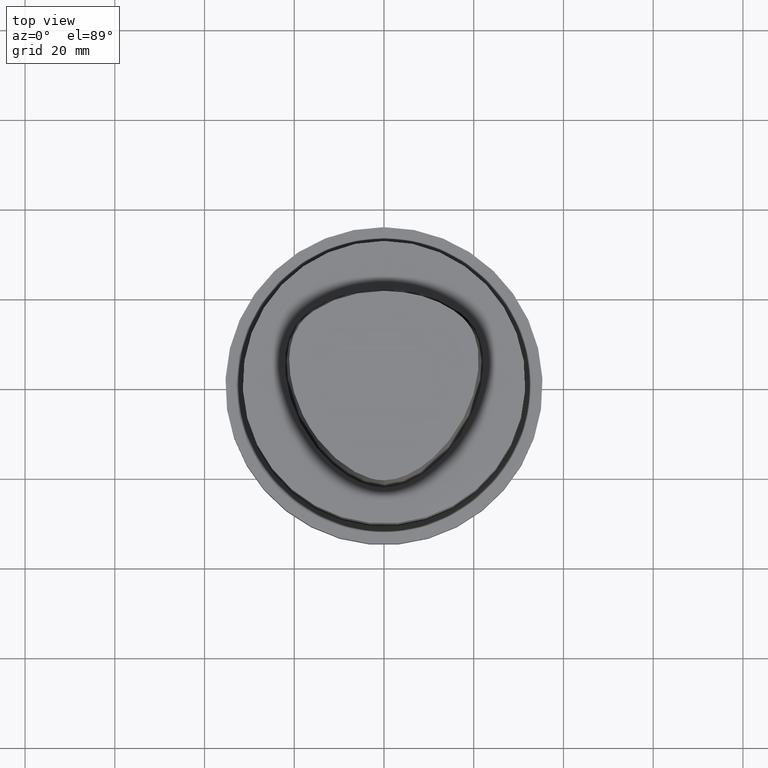
[diagram: clean part render]
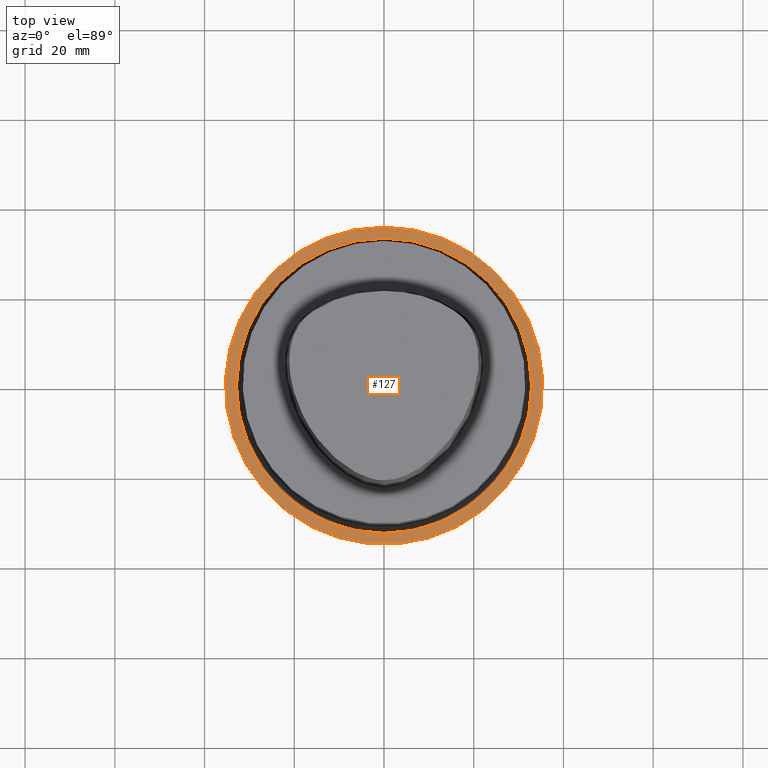
[diagram: same view with one face highlighted and labeled with its STEP entity id]
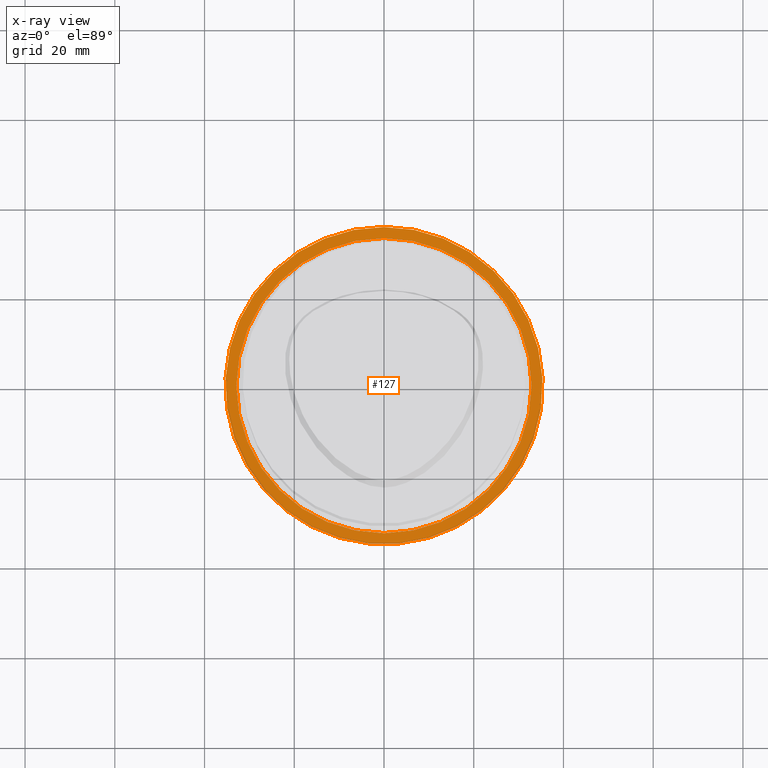
[diagram: x-ray of the same camera — body ghosted, the highlighted face saturated]
A machine part, top view. The second image highlights one B-rep face of the part: STEP entity #127.
The next image is the same camera in x-ray: the body ghosted, the highlighted face saturated — about 0% of this face is hidden behind the body in this view.
In plain terms, the highlighted planar face has unit normal (-0, -0, 1).
Its self-contained STEP definition (entity closure, byte-faithful):
#68=EDGE_CURVE('Unnamed[1]',#182,#182,#183,.T.);
#119=EDGE_CURVE('Unnamed[1]',#256,#256,#257,.T.);
#127=ADVANCED_FACE('Unnamed[1]',(#268,#269),#270,.T.);
#182=VERTEX_POINT('',#331);
#183=CIRCLE('',#332,35.3500000000001);
#256=VERTEX_POINT('',#614);
#257=CIRCLE('',#615,32.9000000000001);
#268=FACE_OUTER_BOUND('',#629,.T.);
#269=FACE_BOUND('',#630,.T.);
#270=PLANE('',#631);
#331=CARTESIAN_POINT('',(2.67585325613694E-015,35.3500000000001,-43.6999999999996));
#332=AXIS2_PLACEMENT_3D('',#711,#712,#713);
#614=CARTESIAN_POINT('',(2.67585325613695E-015,32.9000000000001,-43.6999999999998));
#615=AXIS2_PLACEMENT_3D('',#780,#781,#782);
#629=EDGE_LOOP('',(#793));
#630=EDGE_LOOP('',(#794));
#631=AXIS2_PLACEMENT_3D('',#795,#796,#797);
#711=CARTESIAN_POINT('',(2.67585325613694E-015,5.35170651227388E-015,-43.6999999999996));
#712=DIRECTION('',(6.12323399573677E-017,1.22464679914735E-016,-1.0));
#713=DIRECTION('',(-1.23259516440783E-032,1.0,1.22464679914735E-016));
#780=CARTESIAN_POINT('',(2.67585325613695E-015,5.35170651227391E-015,-43.6999999999998));
#781=DIRECTION('',(6.12323399573676E-017,1.22464679914735E-016,-1.0));
#782=DIRECTION('',(-1.23259516440783E-032,1.0,1.22464679914735E-016));
#793=ORIENTED_EDGE('',*,*,#68,.F.);
#794=ORIENTED_EDGE('',*,*,#119,.T.);
#795=CARTESIAN_POINT('',(2.67585325613695E-015,34.1250000000001,-43.6999999999997));
#796=DIRECTION('',(-6.12323399573677E-017,-7.84271743351098E-014,1.0));
#797=DIRECTION('',(4.80710655351395E-030,-1.0,-7.84271743351098E-014));